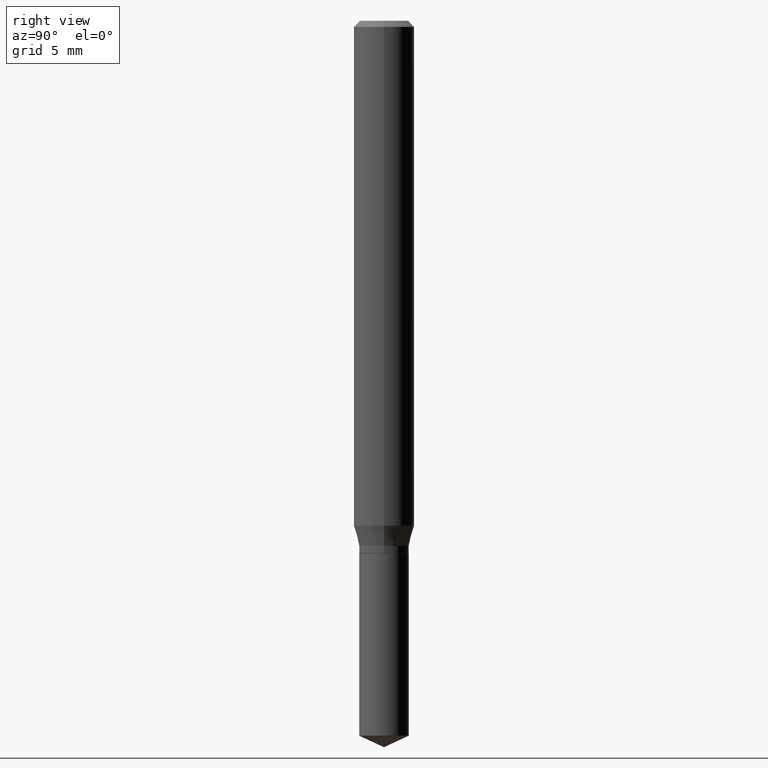
[diagram: clean part render]
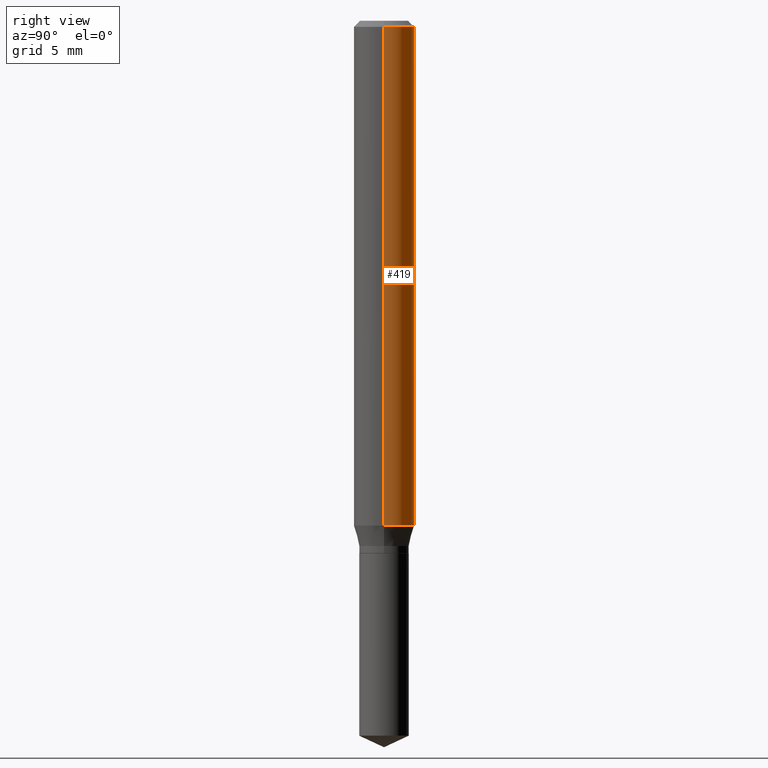
[diagram: same view with one face highlighted and labeled with its STEP entity id]
A machine part, right view. The second image highlights one B-rep face of the part: STEP entity #419.
In plain terms, the highlighted cylindrical surface (edge-blend (fillet) strip) has radius 1.5875 mm, axis along (-0, 0, 1).
Its self-contained STEP definition (entity closure, byte-faithful):
#5 = VERTEX_POINT ( 'NONE', #465 ) ;
#17 = CYLINDRICAL_SURFACE ( 'NONE', #215, 0.06250000000000006939 ) ;
#20 = CARTESIAN_POINT ( 'NONE',  ( 0.06250000000000006939, -4.364351673553921624E-16, 3.047610484872463374E-30 ) ) ;
#26 = CIRCLE ( 'NONE', #368, 0.06250000000000000000 ) ;
#45 = EDGE_CURVE ( 'NONE', #5, #158, #127, .T. ) ;
#46 = CARTESIAN_POINT ( 'NONE',  ( 0.000000000000000000, 0.000000000000000000, 0.000000000000000000 ) ) ;
#53 = ORIENTED_EDGE ( 'NONE', *, *, #85, .T. ) ;
#57 = DIRECTION ( 'NONE',  ( -2.445468806185136597E-29, 3.491481338843145583E-15, 1.000000000000000000 ) ) ;
#59 = VERTEX_POINT ( 'NONE', #246 ) ;
#62 = CARTESIAN_POINT ( 'NONE',  ( 2.549224730875411366E-29, -3.639617301131549436E-15, -1.042427825874471470 ) ) ;
#85 = EDGE_CURVE ( 'NONE', #59, #5, #284, .T. ) ;
#94 = EDGE_LOOP ( 'NONE', ( #53, #112, #344, #470 ) ) ;
#106 = DIRECTION ( 'NONE',  ( -2.445468806185136597E-29, 3.491481338843145583E-15, 1.000000000000000000 ) ) ;
#112 = ORIENTED_EDGE ( 'NONE', *, *, #45, .T. ) ;
#127 = LINE ( 'NONE', #310, #407 ) ;
#131 = DIRECTION ( 'NONE',  ( -2.445468806185136877E-29, 3.491481338843145188E-15, 1.000000000000000000 ) ) ;
#158 = VERTEX_POINT ( 'NONE', #472 ) ;
#159 = DIRECTION ( 'NONE',  ( 1.000000000000000000, -6.982962677686266711E-15, 4.876176775795935793E-29 ) ) ;
#215 = AXIS2_PLACEMENT_3D ( 'NONE', #46, #57, #159 ) ;
#246 = CARTESIAN_POINT ( 'NONE',  ( 0.06250000000000012490, -4.076052468486941894E-15, -1.042427825874471470 ) ) ;
#272 = EDGE_CURVE ( 'NONE', #59, #393, #406, .T. ) ;
#280 = DIRECTION ( 'NONE',  ( 1.000000000000000000, -6.982962677686264344E-15, 0.000000000000000000 ) ) ;
#284 = CIRCLE ( 'NONE', #445, 0.06250000000000012490 ) ;
#292 = CARTESIAN_POINT ( 'NONE',  ( 0.06250000000000000000, -4.800786840909313294E-16, -0.01250000000000008916 ) ) ;
#310 = CARTESIAN_POINT ( 'NONE',  ( -0.06250000000000006939, 4.440892098500631092E-16, -3.074334431409319267E-30 ) ) ;
#328 = EDGE_CURVE ( 'NONE', #393, #158, #26, .T. ) ;
#344 = ORIENTED_EDGE ( 'NONE', *, *, #328, .F. ) ;
#346 = VECTOR ( 'NONE', #357, 39.37007874015748143 ) ;
#353 = DIRECTION ( 'NONE',  ( -2.445468806185136597E-29, 3.491481338843145583E-15, 1.000000000000000000 ) ) ;
#357 = DIRECTION ( 'NONE',  ( -2.445468806185136877E-29, 3.491481338843145188E-15, 1.000000000000000000 ) ) ;
#368 = AXIS2_PLACEMENT_3D ( 'NONE', #416, #106, #408 ) ;
#378 = FACE_OUTER_BOUND ( 'NONE', #94, .T. ) ;
#393 = VERTEX_POINT ( 'NONE', #292 ) ;
#406 = LINE ( 'NONE', #20, #346 ) ;
#407 = VECTOR ( 'NONE', #131, 39.37007874015748143 ) ;
#408 = DIRECTION ( 'NONE',  ( 1.000000000000000000, -6.982962677686266711E-15, 0.000000000000000000 ) ) ;
#416 = CARTESIAN_POINT ( 'NONE',  ( 3.056836007731442729E-31, -4.364351673553962300E-17, -0.01250000000000008916 ) ) ;
#419 = ADVANCED_FACE ( 'NONE', ( #378 ), #17, .T. ) ;
#445 = AXIS2_PLACEMENT_3D ( 'NONE', #62, #353, #280 ) ;
#465 = CARTESIAN_POINT ( 'NONE',  ( -0.06250000000000012490, -3.195528091281486031E-15, -1.042427825874471470 ) ) ;
#470 = ORIENTED_EDGE ( 'NONE', *, *, #272, .F. ) ;
#472 = CARTESIAN_POINT ( 'NONE',  ( -0.06250000000000000000, -1.397541199083480699E-15, -0.01250000000000008916 ) ) ;